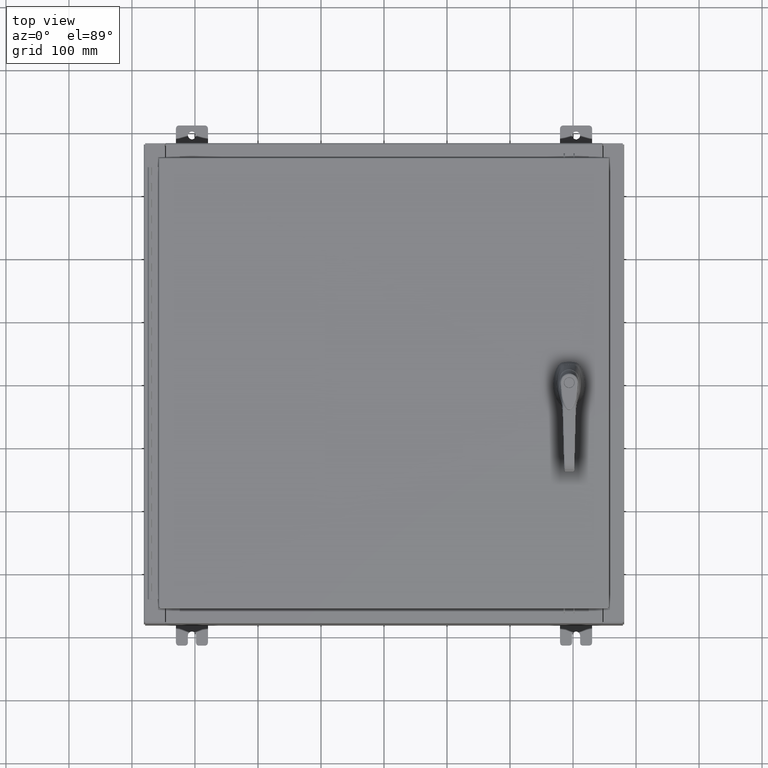
[diagram: clean part render]
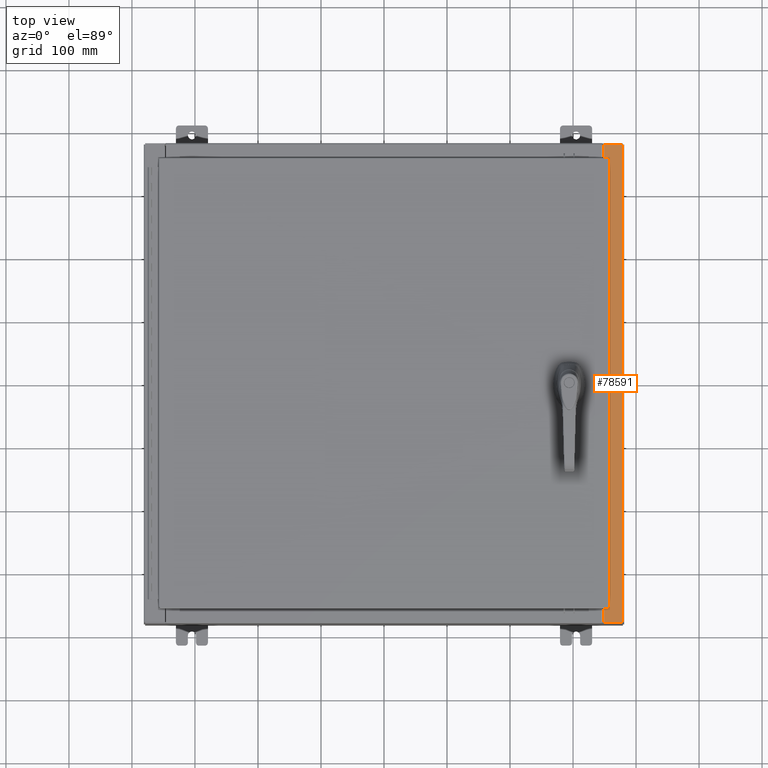
[diagram: same view with one face highlighted and labeled with its STEP entity id]
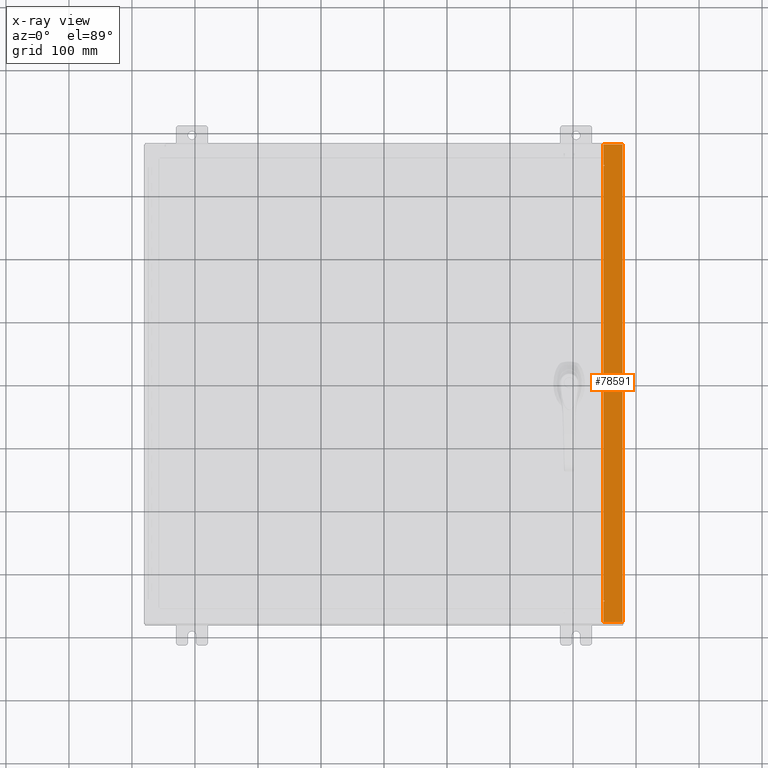
[diagram: x-ray of the same camera — body ghosted, the highlighted face saturated]
A machine part, top view. The second image highlights one B-rep face of the part: STEP entity #78591.
The next image is the same camera in x-ray: the body ghosted, the highlighted face saturated — about 0% of this face is hidden behind the body in this view.
In plain terms, the highlighted planar face has unit normal (-0, 0, -1).
Its self-contained STEP definition (entity closure, byte-faithful):
#3782 = LINE ( 'NONE', #8098, #52301 ) ;
#4264 = EDGE_CURVE ( 'NONE', #4842, #109389, #17841, .T. ) ;
#4305 = CARTESIAN_POINT ( 'NONE',  ( 13.69970000000003000, -13.63110000000000400, 7.925300000000007100 ) ) ;
#4842 = VERTEX_POINT ( 'NONE', #35874 ) ;
#4964 = ORIENTED_EDGE ( 'NONE', *, *, #35470, .F. ) ;
#5017 = DIRECTION ( 'NONE',  ( -2.590438124695581200E-031, -1.000000000000000000, 1.616735716567471300E-045 ) ) ;
#6760 = CARTESIAN_POINT ( 'NONE',  ( 13.69970000000003000, -14.92530000000000200, 7.925300000000007100 ) ) ;
#8098 = CARTESIAN_POINT ( 'NONE',  ( 13.71270000000003200, -13.59375000000000000, 7.925300000000008900 ) ) ;
#8577 = ORIENTED_EDGE ( 'NONE', *, *, #78286, .T. ) ;
#8892 = DIRECTION ( 'NONE',  ( -1.000000000000000000, 0.0000000000000000000, 6.241167087353086200E-015 ) ) ;
#9016 = VERTEX_POINT ( 'NONE', #4305 ) ;
#10495 = ORIENTED_EDGE ( 'NONE', *, *, #101489, .T. ) ;
#10975 = VECTOR ( 'NONE', #49171, 39.37007874015748100 ) ;
#12171 = ORIENTED_EDGE ( 'NONE', *, *, #41235, .T. ) ;
#17616 = CARTESIAN_POINT ( 'NONE',  ( 13.69970000000003000, 13.63109999999998600, 7.925300000000007100 ) ) ;
#17841 = LINE ( 'NONE', #99472, #112085 ) ;
#18195 = CARTESIAN_POINT ( 'NONE',  ( 13.75005000000003200, -13.59375000000000400, 7.925300000000006200 ) ) ;
#19101 = VERTEX_POINT ( 'NONE', #103583 ) ;
#20236 = ORIENTED_EDGE ( 'NONE', *, *, #111130, .F. ) ;
#20343 = CIRCLE ( 'NONE', #35726, 0.01867499999999949400 ) ;
#23121 = LINE ( 'NONE', #30807, #93039 ) ;
#26020 = PLANE ( 'NONE',  #66648 ) ;
#26754 = VERTEX_POINT ( 'NONE', #76000 ) ;
#27212 = CARTESIAN_POINT ( 'NONE',  ( 13.71270000000003200, 13.59374999999998600, 7.925300000000008900 ) ) ;
#27395 = EDGE_CURVE ( 'NONE', #9016, #26754, #75050, .T. ) ;
#27584 = CARTESIAN_POINT ( 'NONE',  ( 13.75005000000003200, 13.59374999999998600, 7.925300000000006200 ) ) ;
#30031 = ORIENTED_EDGE ( 'NONE', *, *, #78634, .F. ) ;
#30807 = CARTESIAN_POINT ( 'NONE',  ( 13.69970000000003000, -3.548822517689199900E-030, 7.925300000000007100 ) ) ;
#33607 = VECTOR ( 'NONE', #51979, 39.37007874015748100 ) ;
#34217 = LINE ( 'NONE', #27212, #104177 ) ;
#35470 = EDGE_CURVE ( 'NONE', #51789, #19101, #72806, .T. ) ;
#35726 = AXIS2_PLACEMENT_3D ( 'NONE', #49179, #113009, #58365 ) ;
#35874 = CARTESIAN_POINT ( 'NONE',  ( 14.91230000000002900, 14.92530000000000200, 7.925300000000000000 ) ) ;
#37354 = DIRECTION ( 'NONE',  ( 6.241167087353086200E-015, 0.0000000000000000000, 1.000000000000000000 ) ) ;
#40836 = AXIS2_PLACEMENT_3D ( 'NONE', #92058, #37354, #101231 ) ;
#41014 = LINE ( 'NONE', #57956, #10975 ) ;
#41235 = EDGE_CURVE ( 'NONE', #4842, #109498, #41014, .T. ) ;
#43717 = CARTESIAN_POINT ( 'NONE',  ( 13.75005000000003200, 13.63109999999998600, 7.925300000000008900 ) ) ;
#48615 = VECTOR ( 'NONE', #53061, 39.37007874015748100 ) ;
#49171 = DIRECTION ( 'NONE',  ( -1.000000000000000000, 0.0000000000000000000, 6.241167087353087800E-015 ) ) ;
#49179 = CARTESIAN_POINT ( 'NONE',  ( 13.75005000000003200, -13.61242500000000400, 7.925300000000008900 ) ) ;
#50387 = EDGE_CURVE ( 'NONE', #92380, #78250, #97212, .T. ) ;
#50470 = CARTESIAN_POINT ( 'NONE',  ( 13.69970000000003000, -3.548822517689199900E-030, 7.925300000000007100 ) ) ;
#50573 = EDGE_LOOP ( 'NONE', ( #111772, #52390, #10495, #96761, #12171, #8577, #69680, #4964, #30031, #20236, #105865, #101299 ) ) ;
#51422 = LINE ( 'NONE', #50470, #54267 ) ;
#51789 = VERTEX_POINT ( 'NONE', #27584 ) ;
#51979 = DIRECTION ( 'NONE',  ( 1.000000000000000000, 1.783190596386596200E-015, -6.241167087353087800E-015 ) ) ;
#52301 = VECTOR ( 'NONE', #117423, 39.37007874015748100 ) ;
#52390 = ORIENTED_EDGE ( 'NONE', *, *, #58372, .T. ) ;
#53061 = DIRECTION ( 'NONE',  ( -1.000000000000000000, 0.0000000000000000000, 0.0000000000000000000 ) ) ;
#54267 = VECTOR ( 'NONE', #5017, 39.37007874015748100 ) ;
#54965 = LINE ( 'NONE', #43717, #87885 ) ;
#56683 = CARTESIAN_POINT ( 'NONE',  ( 14.91230000000002900, -14.92530000000000200, 7.925300000000000000 ) ) ;
#57956 = CARTESIAN_POINT ( 'NONE',  ( 4.972393517341156900E-014, 14.92530000000000000, 7.925300000000092400 ) ) ;
#58365 = DIRECTION ( 'NONE',  ( 1.000000000000000000, 0.0000000000000000000, 0.0000000000000000000 ) ) ;
#58372 = EDGE_CURVE ( 'NONE', #9016, #103467, #23121, .T. ) ;
#63512 = DIRECTION ( 'NONE',  ( -6.241167087353086200E-015, 0.0000000000000000000, -1.000000000000000000 ) ) ;
#66522 = DIRECTION ( 'NONE',  ( 1.000000000000000000, 0.0000000000000000000, 0.0000000000000000000 ) ) ;
#66648 = AXIS2_PLACEMENT_3D ( 'NONE', #118221, #63512, #8892 ) ;
#67161 = DIRECTION ( 'NONE',  ( -2.590438124695581200E-031, -1.000000000000000000, 1.616735716567471300E-045 ) ) ;
#69680 = ORIENTED_EDGE ( 'NONE', *, *, #116968, .F. ) ;
#70849 = DIRECTION ( 'NONE',  ( -1.000000000000000000, 0.0000000000000000000, 0.0000000000000000000 ) ) ;
#72806 = CIRCLE ( 'NONE', #40836, 0.01867499999999949400 ) ;
#75050 = LINE ( 'NONE', #112004, #96569 ) ;
#76000 = CARTESIAN_POINT ( 'NONE',  ( 13.75005000000003200, -13.63110000000000400, 7.925300000000006200 ) ) ;
#77869 = VERTEX_POINT ( 'NONE', #17616 ) ;
#78250 = VERTEX_POINT ( 'NONE', #108768 ) ;
#78286 = EDGE_CURVE ( 'NONE', #109498, #77869, #51422, .T. ) ;
#78591 = ADVANCED_FACE ( 'NONE', ( #85629 ), #26020, .F. ) ;
#78634 = EDGE_CURVE ( 'NONE', #113931, #51789, #34217, .T. ) ;
#81075 = DIRECTION ( 'NONE',  ( -0.0000000000000000000, -1.000000000000000000, -0.0000000000000000000 ) ) ;
#81843 = DIRECTION ( 'NONE',  ( 1.000000000000000000, 0.0000000000000000000, 0.0000000000000000000 ) ) ;
#85629 = FACE_OUTER_BOUND ( 'NONE', #50573, .T. ) ;
#87113 = CARTESIAN_POINT ( 'NONE',  ( 13.71270000000003200, 13.59374999999998600, 7.925300000000008900 ) ) ;
#87429 = EDGE_CURVE ( 'NONE', #26754, #92380, #20343, .T. ) ;
#87885 = VECTOR ( 'NONE', #70849, 39.37007874015748100 ) ;
#89374 = CARTESIAN_POINT ( 'NONE',  ( 13.75005000000003200, -13.59375000000000400, 7.925300000000008900 ) ) ;
#92058 = CARTESIAN_POINT ( 'NONE',  ( 13.75005000000003200, 13.61242499999998600, 7.925300000000008900 ) ) ;
#92380 = VERTEX_POINT ( 'NONE', #18195 ) ;
#93039 = VECTOR ( 'NONE', #67161, 39.37007874015748100 ) ;
#94210 = CARTESIAN_POINT ( 'NONE',  ( 13.69970000000003000, 14.92530000000000200, 7.925300000000007100 ) ) ;
#96569 = VECTOR ( 'NONE', #66522, 39.37007874015748100 ) ;
#96761 = ORIENTED_EDGE ( 'NONE', *, *, #4264, .F. ) ;
#97212 = LINE ( 'NONE', #89374, #48615 ) ;
#97488 = CARTESIAN_POINT ( 'NONE',  ( 7.633858978166047400E-014, -14.92530000000002700, 7.925300000000092400 ) ) ;
#99472 = CARTESIAN_POINT ( 'NONE',  ( 14.91230000000002900, -14.92530000000000200, 7.925300000000000000 ) ) ;
#101231 = DIRECTION ( 'NONE',  ( 1.000000000000000000, 0.0000000000000000000, 0.0000000000000000000 ) ) ;
#101299 = ORIENTED_EDGE ( 'NONE', *, *, #87429, .F. ) ;
#101489 = EDGE_CURVE ( 'NONE', #103467, #109389, #106435, .T. ) ;
#103467 = VERTEX_POINT ( 'NONE', #6760 ) ;
#103583 = CARTESIAN_POINT ( 'NONE',  ( 13.75005000000003200, 13.63109999999998600, 7.925300000000006200 ) ) ;
#104177 = VECTOR ( 'NONE', #81843, 39.37007874015748100 ) ;
#105865 = ORIENTED_EDGE ( 'NONE', *, *, #50387, .F. ) ;
#106435 = LINE ( 'NONE', #97488, #33607 ) ;
#108768 = CARTESIAN_POINT ( 'NONE',  ( 13.71270000000003200, -13.59375000000000400, 7.925300000000008900 ) ) ;
#109389 = VERTEX_POINT ( 'NONE', #56683 ) ;
#109498 = VERTEX_POINT ( 'NONE', #94210 ) ;
#111130 = EDGE_CURVE ( 'NONE', #78250, #113931, #3782, .T. ) ;
#111772 = ORIENTED_EDGE ( 'NONE', *, *, #27395, .F. ) ;
#112004 = CARTESIAN_POINT ( 'NONE',  ( 13.69970000000003000, -13.63110000000000400, 7.925300000000008900 ) ) ;
#112085 = VECTOR ( 'NONE', #81075, 39.37007874015748100 ) ;
#113009 = DIRECTION ( 'NONE',  ( 6.241167087353086200E-015, 0.0000000000000000000, 1.000000000000000000 ) ) ;
#113931 = VERTEX_POINT ( 'NONE', #87113 ) ;
#116968 = EDGE_CURVE ( 'NONE', #19101, #77869, #54965, .T. ) ;
#117423 = DIRECTION ( 'NONE',  ( -0.0000000000000000000, 1.000000000000000000, -0.0000000000000000000 ) ) ;
#118221 = CARTESIAN_POINT ( 'NONE',  ( 4.972393517341156900E-014, 0.0000000000000000000, 7.925300000000092400 ) ) ;